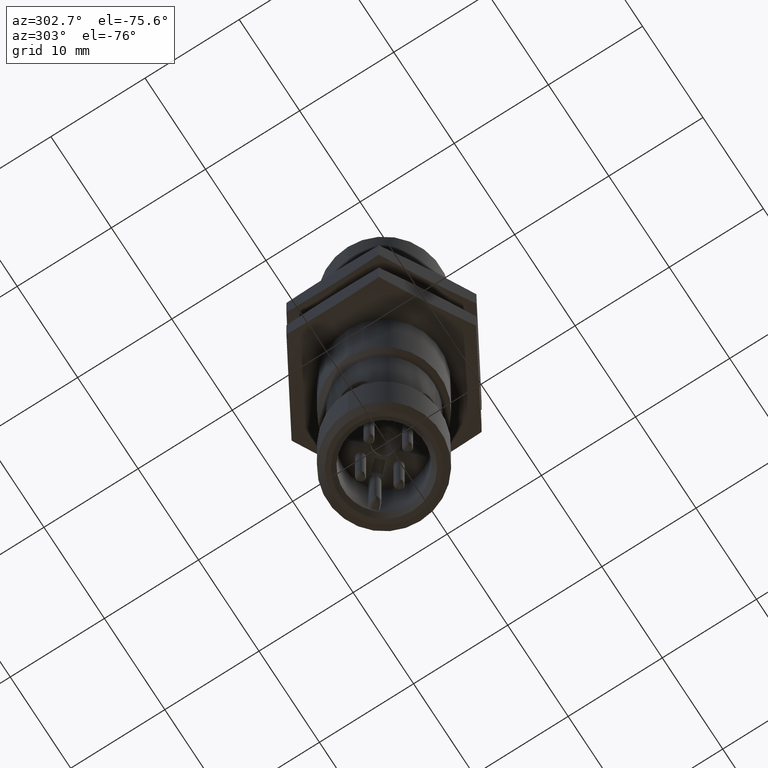
[diagram: clean part render]
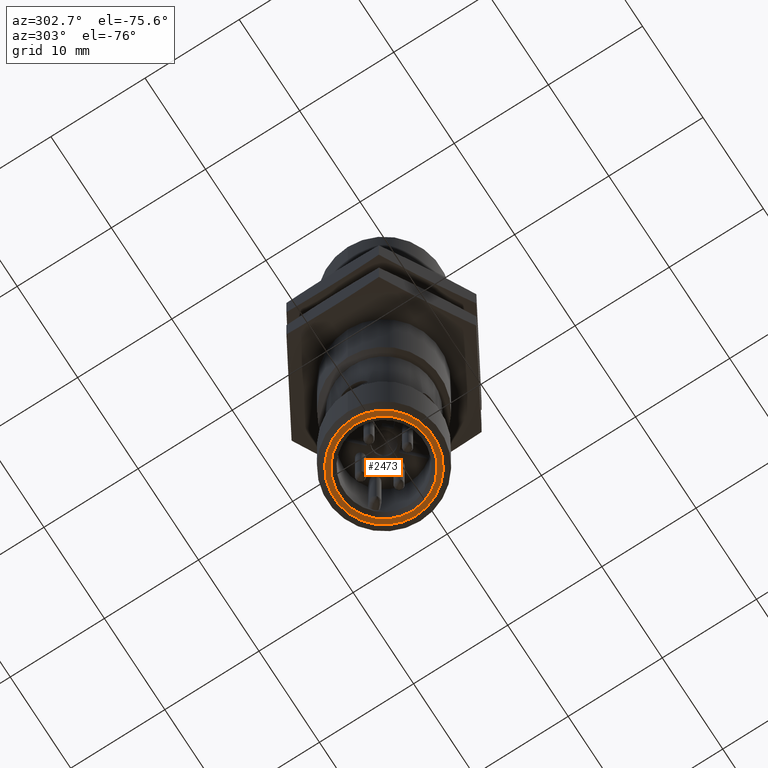
[diagram: same view with one face highlighted and labeled with its STEP entity id]
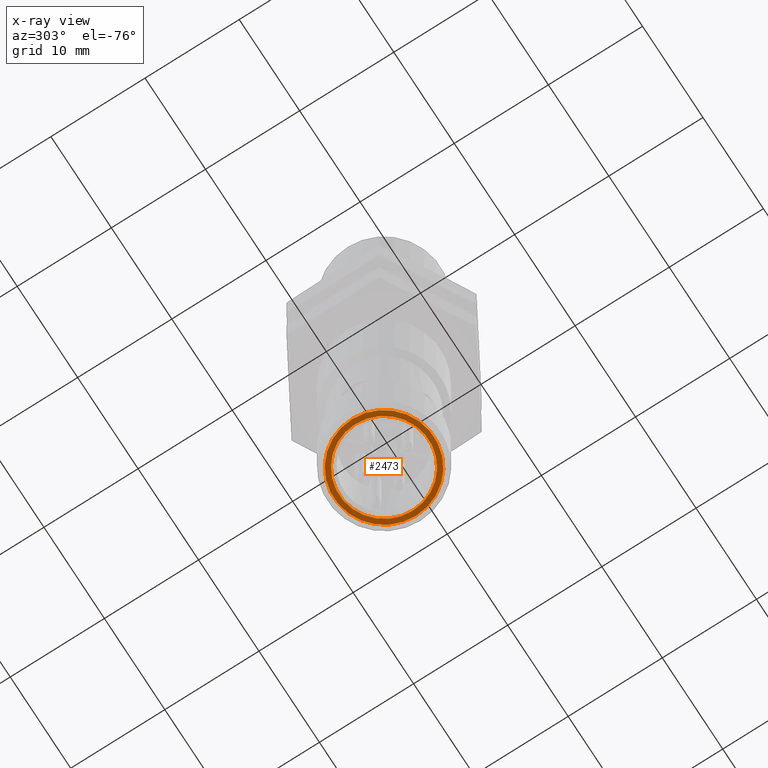
[diagram: x-ray of the same camera — body ghosted, the highlighted face saturated]
A machine part, auxiliary view. The second image highlights one B-rep face of the part: STEP entity #2473.
The next image is the same camera in x-ray: the body ghosted, the highlighted face saturated — about 0% of this face is hidden behind the body in this view.
In plain terms, the highlighted planar face has unit normal (0, 0, 1).
Its self-contained STEP definition (entity closure, byte-faithful):
#40 = DIRECTION ( 'NONE',  ( 8.254137957719979807E-15, 1.000000000000000000, 8.273140157307354387E-15 ) ) ;
#161 = EDGE_LOOP ( 'NONE', ( #1672 ) ) ;
#211 = VERTEX_POINT ( 'NONE', #296 ) ;
#222 = CIRCLE ( 'NONE', #1579, 0.2086614173243371284 ) ;
#296 = CARTESIAN_POINT ( 'NONE',  ( 101.0540168275933723, -34.44200440596803503, -24.93892517150141330 ) ) ;
#532 = DIRECTION ( 'NONE',  ( 0.0000000000000000000, 0.0000000000000000000, 1.000000000000000000 ) ) ;
#674 = ORIENTED_EDGE ( 'NONE', *, *, #1531, .F. ) ;
#729 = CARTESIAN_POINT ( 'NONE',  ( 101.0540168275933723, -34.44200440596896584, -25.33459446284336636 ) ) ;
#963 = AXIS2_PLACEMENT_3D ( 'NONE', #1426, #40, #532 ) ;
#1092 = EDGE_LOOP ( 'NONE', ( #674 ) ) ;
#1415 = FACE_OUTER_BOUND ( 'NONE', #1092, .T. ) ;
#1426 = CARTESIAN_POINT ( 'NONE',  ( 101.0540168275933723, -34.44200440596803503, -25.12593304551903017 ) ) ;
#1531 = EDGE_CURVE ( 'NONE', #2891, #2891, #222, .T. ) ;
#1579 = AXIS2_PLACEMENT_3D ( 'NONE', #2013, #1823, #2518 ) ;
#1580 = CIRCLE ( 'NONE', #963, 0.1870078740176157051 ) ;
#1672 = ORIENTED_EDGE ( 'NONE', *, *, #2267, .F. ) ;
#1823 = DIRECTION ( 'NONE',  ( 0.0000000000000000000, -1.000000000000000000, -0.0000000000000000000 ) ) ;
#1838 = CARTESIAN_POINT ( 'NONE',  ( 100.9066406624009886, -34.44200440596904400, -25.27364849160494487 ) ) ;
#1872 = FACE_BOUND ( 'NONE', #161, .T. ) ;
#2013 = CARTESIAN_POINT ( 'NONE',  ( 101.0540168275933723, -34.44200440596896584, -25.12593304551903017 ) ) ;
#2064 = DIRECTION ( 'NONE',  ( 0.0000000000000000000, -1.000000000000000000, 0.0000000000000000000 ) ) ;
#2267 = EDGE_CURVE ( 'NONE', #211, #211, #1580, .T. ) ;
#2273 = DIRECTION ( 'NONE',  ( 0.0000000000000000000, -0.0000000000000000000, -1.000000000000000000 ) ) ;
#2473 = ADVANCED_FACE ( 'NONE', ( #1415, #1872 ), #2992, .F. ) ;
#2518 = DIRECTION ( 'NONE',  ( 0.0000000000000000000, 0.0000000000000000000, -1.000000000000000000 ) ) ;
#2746 = AXIS2_PLACEMENT_3D ( 'NONE', #1838, #2064, #2273 ) ;
#2891 = VERTEX_POINT ( 'NONE', #729 ) ;
#2992 = PLANE ( 'NONE',  #2746 ) ;